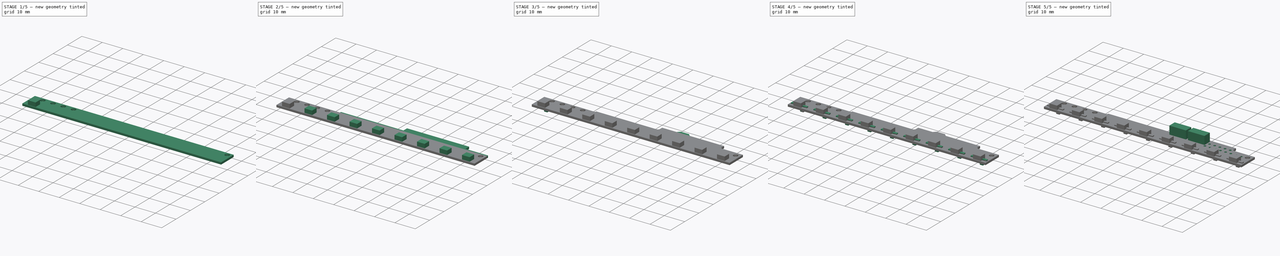
[diagram: build sequence overview — one tinted view per stage of 5, left to right]
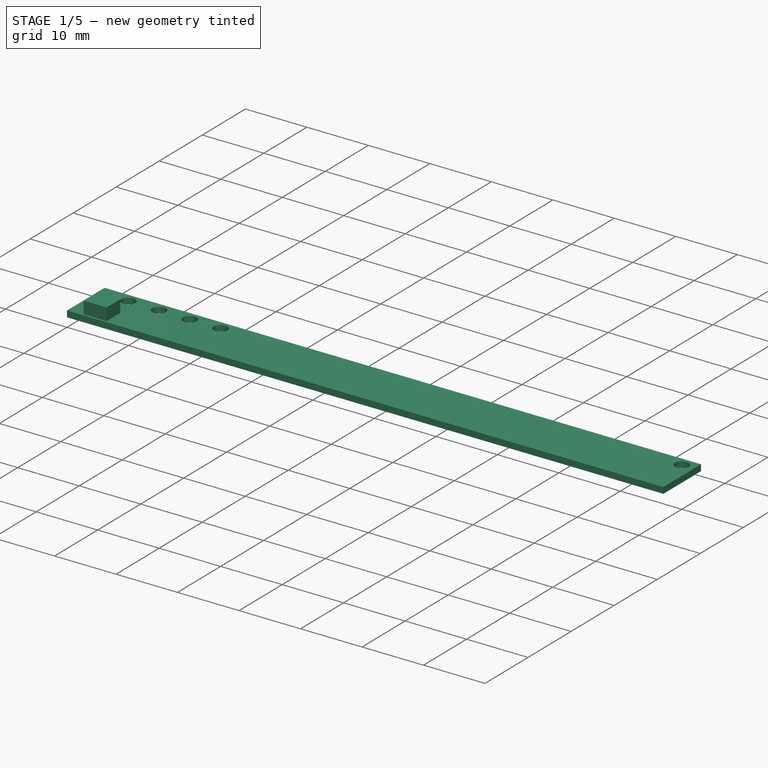
[diagram: stage 1 of 5 — iso view after this stage's code; geometry added in this stage tinted green]
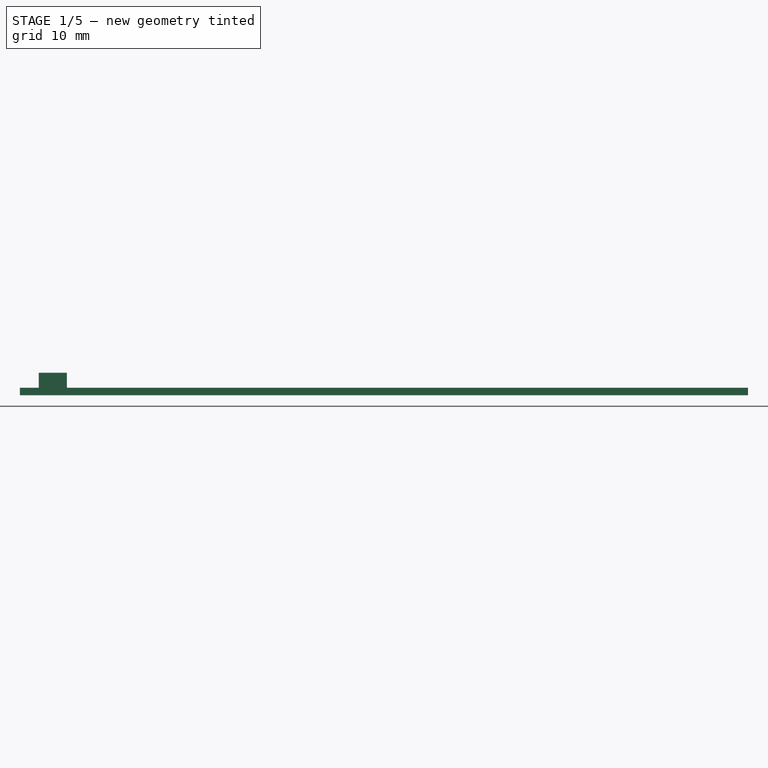
[diagram: stage 1 of 5 — front view after this stage's code; geometry added in this stage tinted green]
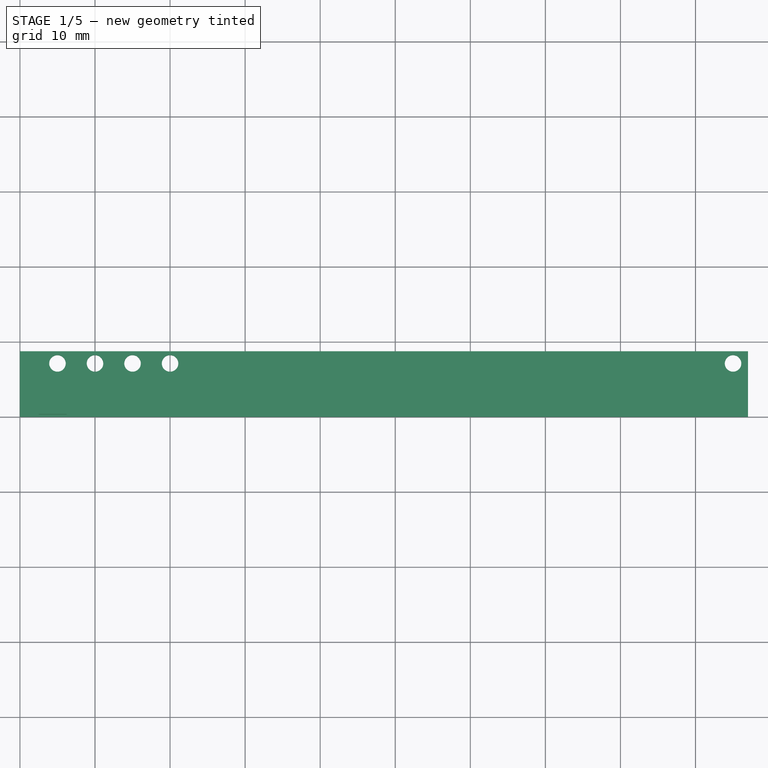
[diagram: stage 1 of 5 — top view after this stage's code; geometry added in this stage tinted green]
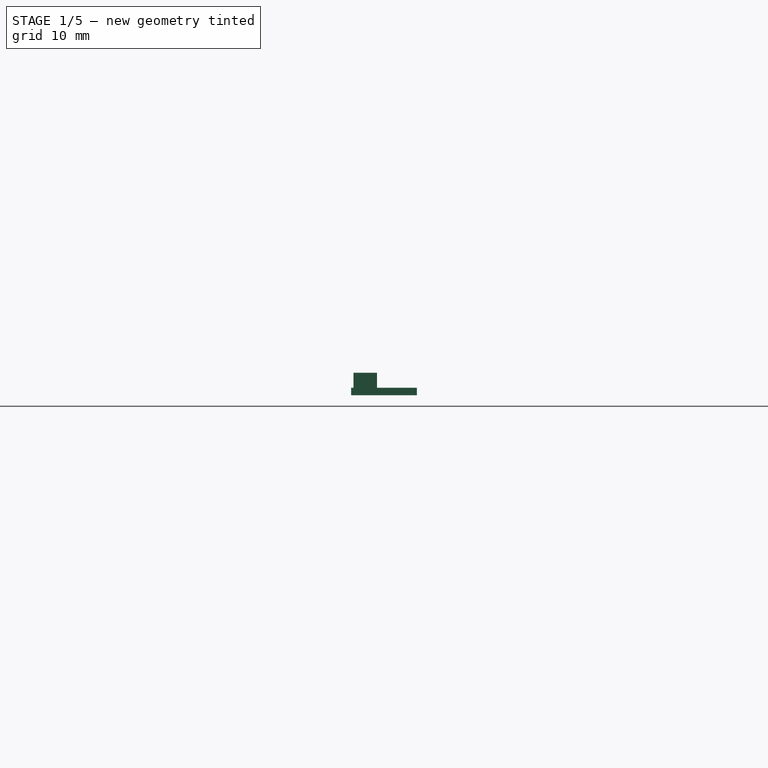
[diagram: stage 1 of 5 — right view after this stage's code; geometry added in this stage tinted green]
FCSTD DOCUMENT  (FreeCAD 0.18.4R)
Label: line_senzor_9
License: All rights reserved
LicenseURL: http://en.wikipedia.org/wiki/All_rights_reserved
objects: Sketcher::SketchObject×16, PartDesign::Pad×9, PartDesign::LinearPattern×8, PartDesign::Pocket×5, PartDesign::Fillet×2, PartDesign::Chamfer×1, PartDesign::Body×1
note: 56 computed .brp shape members not serialized (recipe doc carries the construction recipe); baked Part::Feature solids carry a one-line shape summary decoded from their .brp

FEATURE [Sketcher::SketchObject] Sketch
  MapMode = 5
  Support = -> [XY_Plane]
  sketch-geometry (4):
    g0: LineSegment StartX=0 StartY=8.75 StartZ=0 EndX=97 EndY=8.75 EndZ=0
    g1: LineSegment StartX=97 StartY=8.75 StartZ=0 EndX=97 EndY=0 EndZ=0
    g2: LineSegment StartX=97 StartY=0 StartZ=0 EndX=0 EndY=0 EndZ=0
    g3: LineSegment StartX=0 StartY=0 StartZ=0 EndX=0 EndY=8.75 EndZ=0
  constraints (11):
    c: Coincident(g0,g1)
    c: Coincident(g1,g2)
    c: Coincident(g2,g3)
    c: Coincident(g3,g0)
    c: Horizontal(g0)
    c: Horizontal(g2)
    c: Vertical(g1)
    c: Vertical(g3)
    c: Coincident(g2,g-1)
    c: Distance(g2) = 97
    c: Distance(g3) = 8.75
FEATURE [PartDesign::Pad] Pad
  Length = 1
  Length2 = 100
  Profile = -> Sketch
  Type = 0
FEATURE [Sketcher::SketchObject] Sketch001
  MapMode = 5
  Placement = pos=(0,0,1) rot=(0,0,1;0rad)
  Support = -> [Pad]
  expr: Constraints[1] = 9 - 1.875
  sketch-geometry (3):
    g0: Circle CenterX=5 CenterY=7.125 CenterZ=0 NormalX=0 NormalY=0 NormalZ=1 AngleXU=0 Radius=1.1
    g1: Circle [constr] CenterX=95 CenterY=7.125 CenterZ=0 NormalX=0 NormalY=0 NormalZ=1 AngleXU=0 Radius=1.1
    g2: LineSegment [constr] StartX=5 StartY=7.125 StartZ=0 EndX=95 EndY=7.125 EndZ=0
  constraints (8):
    c: DistanceX(g0) = 5
    c: DistanceY(g0) = 7.125
    c: Radius(g0) = 1.1
    c: Equal(g1,g0)
    c: Coincident(g2,g1)
    c: Horizontal(g2)
    c: Distance(g2) = 90
    c: Coincident(g0,g2)
FEATURE [PartDesign::Pocket] Pocket
  BaseFeature = -> Pad
  Length = 5
  Length2 = 100
  Profile = -> Sketch001
  Type = 0
FEATURE [Sketcher::SketchObject] Sketch002
  MapMode = 5
  Placement = pos=(0,0,1) rot=(0,0,1;0rad)
  Support = -> [Pad]
  expr: Constraints[1] = 9 - 1.875
  sketch-geometry (3):
    g0: Circle [constr] CenterX=5 CenterY=7.125 CenterZ=0 NormalX=0 NormalY=0 NormalZ=1 AngleXU=0 Radius=1.1
    g1: Circle CenterX=95 CenterY=7.125 CenterZ=0 NormalX=0 NormalY=0 NormalZ=1 AngleXU=0 Radius=1.1
    g2: LineSegment [constr] StartX=5 StartY=7.125 StartZ=0 EndX=95 EndY=7.125 EndZ=0
  constraints (8):
    c: DistanceX(g0) = 5
    c: DistanceY(g0) = 7.125
    c: Radius(g0) = 1.1
    c: Equal(g1,g0)
    c: Coincident(g2,g1)
    c: Horizontal(g2)
    c: Distance(g2) = 90
    c: Coincident(g0,g2)
FEATURE [Sketcher::SketchObject] CopySketch002
  Placement = pos=(0,0,1) rot=(0,0,1;0rad)
  expr: Constraints[1] = 9 - 1.875
  sketch-geometry (3):
    g0: Circle [constr] CenterX=5 CenterY=7.125 CenterZ=0 NormalX=0 NormalY=0 NormalZ=1 AngleXU=0 Radius=1.1
    g1: Circle CenterX=95 CenterY=7.125 CenterZ=0 NormalX=0 NormalY=0 NormalZ=1 AngleXU=0 Radius=1.1
    g2: LineSegment [constr] StartX=5 StartY=7.125 StartZ=0 EndX=95 EndY=7.125 EndZ=0
  constraints (8):
    c: DistanceX(g0) = 5
    c: DistanceY(g0) = 7.125
    c: Radius(g0) = 1.1
    c: Equal(g1,g0)
    c: Coincident(g2,g1)
    c: Horizontal(g2)
    c: Distance(g2) = 90
    c: Coincident(g0,g2)
FEATURE [PartDesign::Pocket] Pocket001
  BaseFeature = -> Pocket
  Length = 5
  Length2 = 100
  Profile = -> CopySketch002
  Type = 0
FEATURE [PartDesign::LinearPattern] LinearPattern
  BaseFeature = -> Pocket001
  Direction = -> Sketch001 [H_Axis]
  Length = 15
  Occurrences = 4
  Originals = -> [Pocket]
FEATURE [Sketcher::SketchObject] Sketch003
  MapMode = 5
  Placement = pos=(0,0,1) rot=(0,0,1;0rad)
  Support = -> [LinearPattern]
  sketch-geometry (6):
    g0: LineSegment StartX=2.5 StartY=0.3125 StartZ=0 EndX=6.25 EndY=0.3125 EndZ=0
    g1: LineSegment StartX=6.25 StartY=0.3125 StartZ=0 EndX=6.25 EndY=3.4375 EndZ=0
    g2: LineSegment StartX=6.25 StartY=3.4375 StartZ=0 EndX=2.5 EndY=3.4375 EndZ=0
    g3: LineSegment StartX=2.5 StartY=3.4375 StartZ=0 EndX=2.5 EndY=0.3125 EndZ=0
    g4: LineSegment [constr] StartX=2.5 StartY=0.3125 StartZ=0 EndX=4.375 EndY=1.875 EndZ=0
    g5: LineSegment [constr] StartX=4.375 StartY=1.875 StartZ=0 EndX=6.25 EndY=3.4375 EndZ=0
  constraints (17):
    c: Coincident(g0,g1)
    c: Coincident(g1,g2)
    c: Coincident(g2,g3)
    c: Coincident(g3,g0)
    c: Horizontal(g0)
    c: Horizontal(g2)
    c: Vertical(g1)
    c: Vertical(g3)
    c: Coincident(g4,g5)
    c: Coincident(g5,g1)
    c: Parallel(g5,g4)
    c: Coincident(g4,g0)
    c: Equal(g4,g5)
    c: DistanceX(g4) = 4.375
    c: DistanceY(g4) = 1.875
    c: Distance(g1) = 3.125
    c: Distance(g0) = 3.75
FEATURE [PartDesign::Pad] Pad001
  BaseFeature = -> LinearPattern
  Length = 2
  Length2 = 100
  Profile = -> Sketch003
  Type = 0
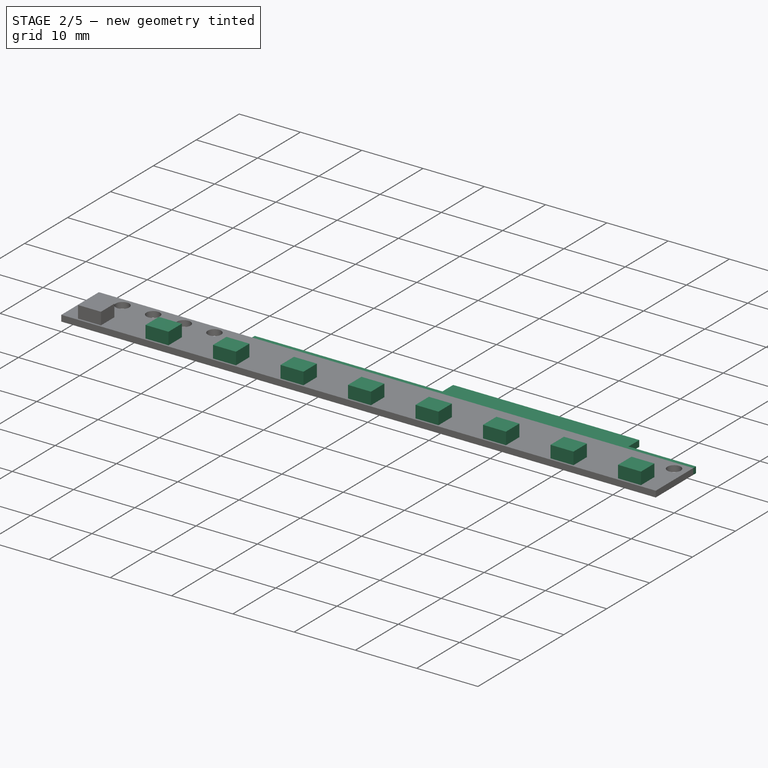
[diagram: stage 2 of 5 — iso view after this stage's code; geometry added in this stage tinted green]
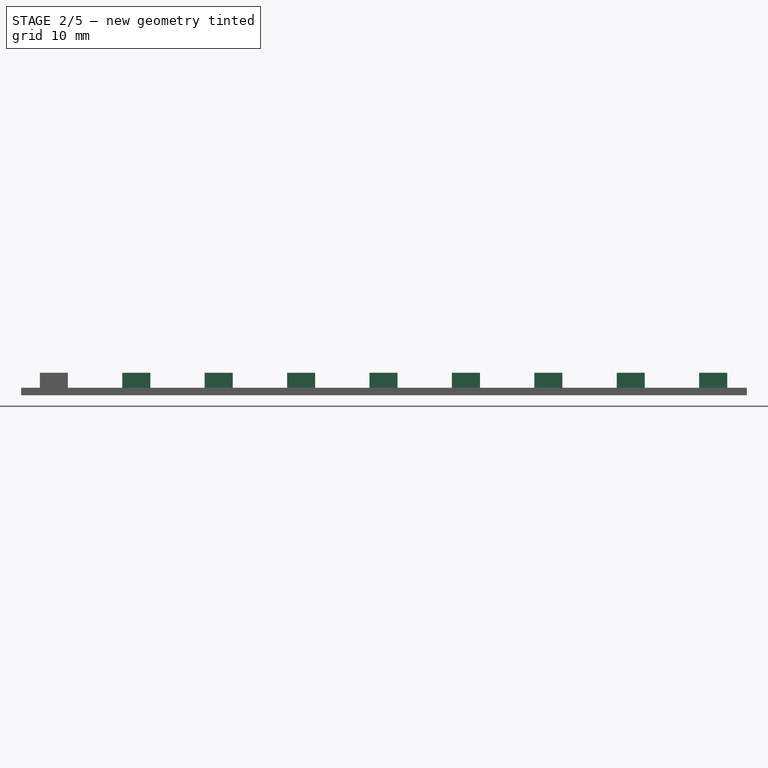
[diagram: stage 2 of 5 — front view after this stage's code; geometry added in this stage tinted green]
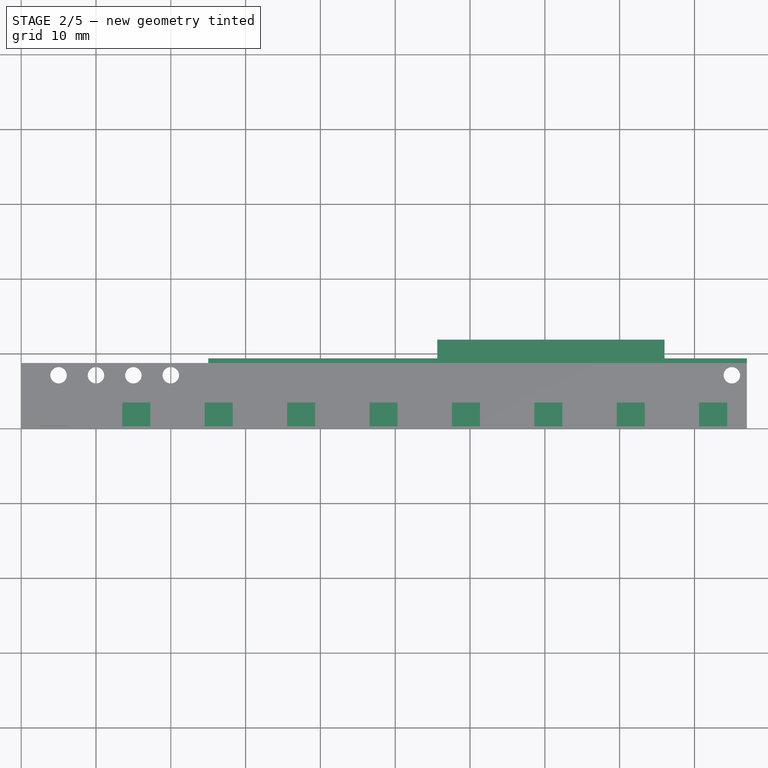
[diagram: stage 2 of 5 — top view after this stage's code; geometry added in this stage tinted green]
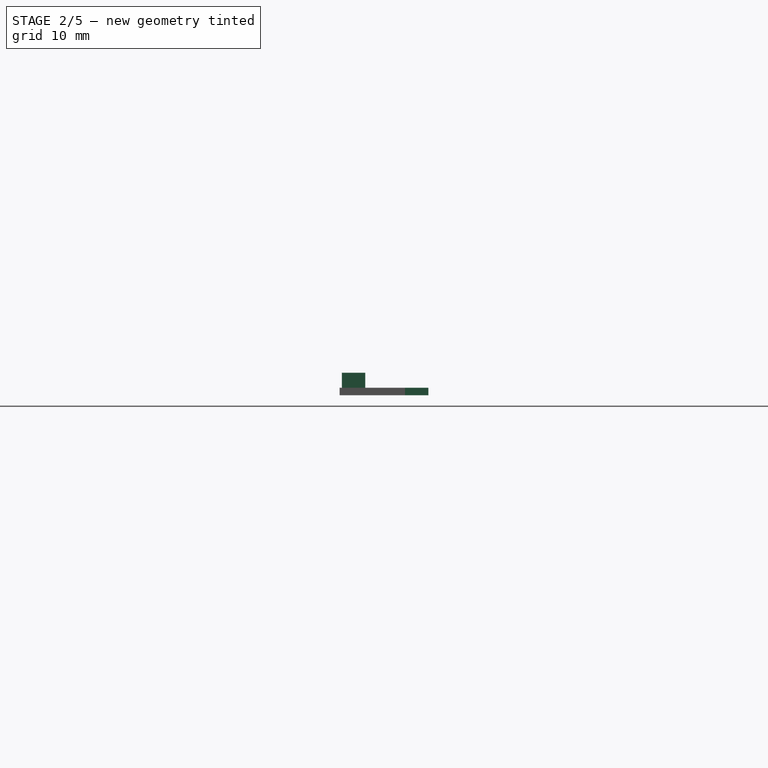
[diagram: stage 2 of 5 — right view after this stage's code; geometry added in this stage tinted green]
FEATURE [PartDesign::LinearPattern] LinearPattern001
  BaseFeature = -> Pad001
  Direction = -> Sketch003 [H_Axis]
  Length = 88.125
  Occurrences = 9
  Originals = -> [Pad001]
FEATURE [Sketcher::SketchObject] Sketch004
  MapMode = 5
  Placement = pos=(0,0,1) rot=(0,0,1;0rad)
  Support = -> [LinearPattern]
  sketch-geometry (1):
    g0: Circle CenterX=4.375 CenterY=1.875 CenterZ=0 NormalX=0 NormalY=0 NormalZ=1 AngleXU=0 Radius=0.75
  constraints (3):
    c: DistanceX(g0) = 4.375
    c: DistanceY(g0) = 1.875
    c: Radius(g0) = 0.75
FEATURE [Sketcher::SketchObject] CopySketch004
  Placement = pos=(0,0,1) rot=(0,0,1;0rad)
  sketch-geometry (1):
    g0: Circle CenterX=4.375 CenterY=1.875 CenterZ=0 NormalX=0 NormalY=0 NormalZ=1 AngleXU=0 Radius=0.75
  constraints (3):
    c: DistanceX(g0) = 4.375
    c: DistanceY(g0) = 1.875
    c: Radius(g0) = 0.75
FEATURE [PartDesign::Pocket] Pocket002
  BaseFeature = -> LinearPattern001
  Length = 5
  Length2 = 100
  Profile = -> CopySketch004
  Type = 0
FEATURE [PartDesign::LinearPattern] LinearPattern002
  BaseFeature = -> Pocket002
  Direction = -> CopySketch004 [H_Axis]
  Length = 88.125
  Occurrences = 9
  Originals = -> [Pocket002]
FEATURE [Sketcher::SketchObject] Sketch005
  MapMode = 5
  Placement = pos=(0,8.75,0) rot=(0,0.707107,0.707107;3.14159rad)
  Support = -> [LinearPattern002]
  sketch-geometry (4):
    g0: LineSegment StartX=-97 StartY=0 StartZ=0 EndX=-25 EndY=0 EndZ=0
    g1: LineSegment StartX=-25 StartY=0 StartZ=0 EndX=-25 EndY=1 EndZ=0
    g2: LineSegment StartX=-25 StartY=1 StartZ=0 EndX=-97 EndY=1 EndZ=0
    g3: LineSegment StartX=-97 StartY=1 StartZ=0 EndX=-97 EndY=0 EndZ=0
  constraints (12):
    c: Coincident(g0,g1)
    c: Coincident(g1,g2)
    c: Coincident(g2,g3)
    c: Coincident(g3,g0)
    c: Horizontal(g0)
    c: Horizontal(g2)
    c: Vertical(g1)
    c: Vertical(g3)
    c: Distance(g1) = 1
    c: PointOnObject(g0,g-1)
    c: DistanceX(g0) = -97
    c: Distance(g-1,g0) = 25
FEATURE [PartDesign::Pad] Pad002
  BaseFeature = -> LinearPattern002
  Length = 0.625
  Length2 = 100
  Profile = -> Sketch005
  Type = 0
FEATURE [Sketcher::SketchObject] Sketch006
  MapMode = 5
  Placement = pos=(0,9.375,0) rot=(0,0.707107,0.707107;3.14159rad)
  Support = -> [Pad002]
  expr: Constraints[10] = -97 + 11
  sketch-geometry (4):
    g0: LineSegment StartX=-86 StartY=1 StartZ=0 EndX=-55.625 EndY=1 EndZ=0
    g1: LineSegment StartX=-55.625 StartY=1 StartZ=0 EndX=-55.625 EndY=0 EndZ=0
    g2: LineSegment StartX=-55.625 StartY=0 StartZ=0 EndX=-86 EndY=0 EndZ=0
    g3: LineSegment StartX=-86 StartY=0 StartZ=0 EndX=-86 EndY=1 EndZ=0
  constraints (12):
    c: Coincident(g0,g1)
    c: Coincident(g1,g2)
    c: Coincident(g2,g3)
    c: Coincident(g3,g0)
    c: Horizontal(g0)
    c: Horizontal(g2)
    c: Vertical(g1)
    c: Vertical(g3)
    c: Distance(g3) = 1
    c: PointOnObject(g2,g-1)
    c: DistanceX(g2) = -86
    c: Distance(g0) = 30.375
FEATURE [PartDesign::Pad] Pad003
  BaseFeature = -> Pad002
  Length = 2.5
  Length2 = 100
  Profile = -> Sketch006
  Type = 0
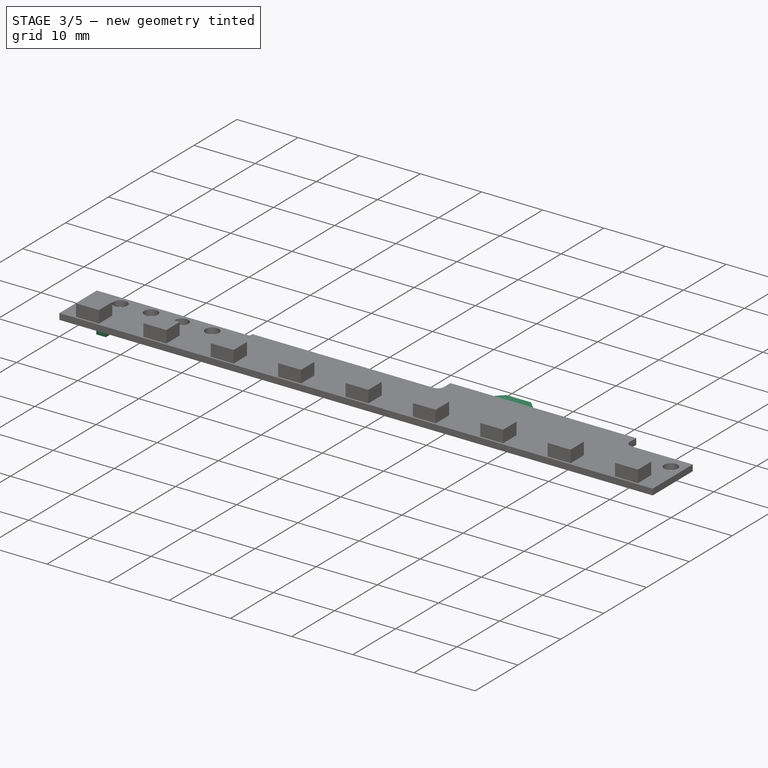
[diagram: stage 3 of 5 — iso view after this stage's code; geometry added in this stage tinted green]
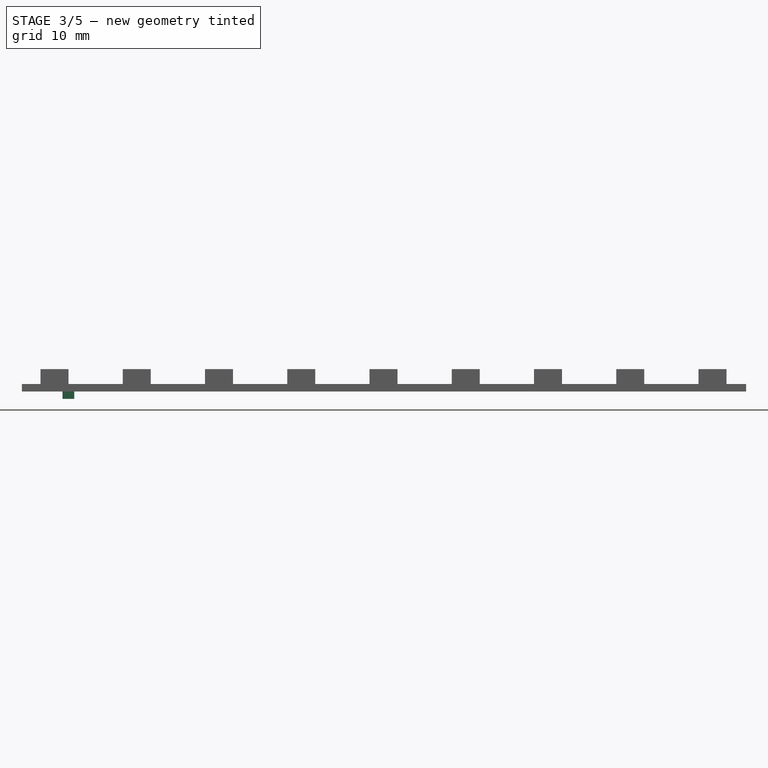
[diagram: stage 3 of 5 — front view after this stage's code; geometry added in this stage tinted green]
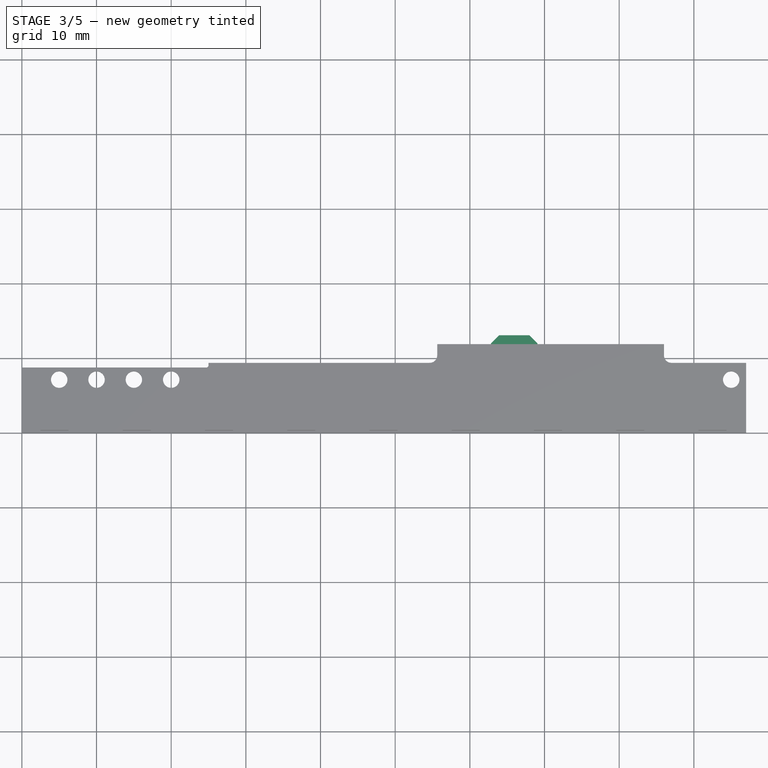
[diagram: stage 3 of 5 — top view after this stage's code; geometry added in this stage tinted green]
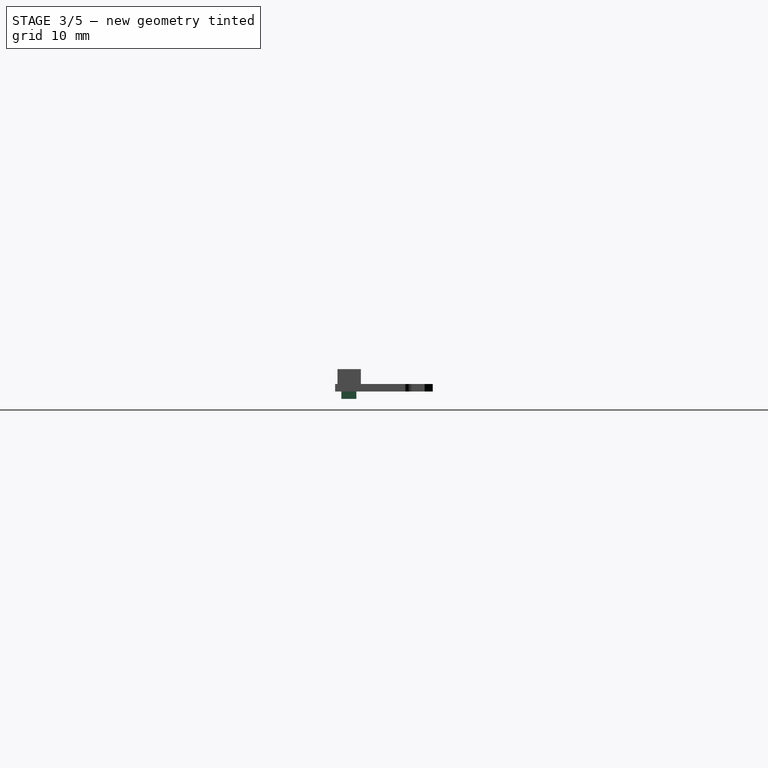
[diagram: stage 3 of 5 — right view after this stage's code; geometry added in this stage tinted green]
FEATURE [PartDesign::Fillet] Fillet
  Base = -> Pad003 [Edge105,Edge179]
  BaseFeature = -> Pad003
  Radius = 1
FEATURE [PartDesign::Fillet] Fillet001
  Base = -> Fillet [Edge38]
  BaseFeature = -> Fillet
  Radius = 0.3
FEATURE [Sketcher::SketchObject] Sketch007
  MapMode = 5
  Placement = pos=(0,11.875,0) rot=(0,0.707107,0.707107;3.14159rad)
  Support = -> [Fillet001]
  sketch-geometry (4):
    g0: LineSegment StartX=-69.0625 StartY=1 StartZ=0 EndX=-62.8125 EndY=1 EndZ=0
    g1: LineSegment StartX=-62.8125 StartY=1 StartZ=0 EndX=-62.8125 EndY=0 EndZ=0
    g2: LineSegment StartX=-62.8125 StartY=0 StartZ=0 EndX=-69.0625 EndY=0 EndZ=0
    g3: LineSegment StartX=-69.0625 StartY=0 StartZ=0 EndX=-69.0625 EndY=1 EndZ=0
  constraints (12):
    c: Coincident(g0,g1)
    c: Coincident(g1,g2)
    c: Coincident(g2,g3)
    c: Coincident(g3,g0)
    c: Horizontal(g0)
    c: Horizontal(g2)
    c: Vertical(g1)
    c: Vertical(g3)
    c: DistanceX(g0) = -62.8125
    c: Distance(g3) = 1
    c: PointOnObject(g1,g-1)
    c: Distance(g0) = 6.25
FEATURE [PartDesign::Pad] Pad004
  BaseFeature = -> Fillet001
  Length = 1.2
  Length2 = 100
  Profile = -> Sketch007
  Type = 0
FEATURE [PartDesign::Chamfer] Chamfer
  Base = -> Pad004 [Edge143,Edge141]
  BaseFeature = -> Pad004
  Size = 1.1
FEATURE [Sketcher::SketchObject] Sketch008
  MapMode = 5
  Placement = pos=(0,0,0) rot=(1,0,0;3.14159rad)
  Support = -> [Chamfer]
  sketch-geometry (4):
    g0: LineSegment StartX=5.44136 StartY=-0.831351 StartZ=0 EndX=7.02136 EndY=-0.831351 EndZ=0
    g1: LineSegment StartX=7.02136 StartY=-0.831351 StartZ=0 EndX=7.02136 EndY=-2.84135 EndZ=0
    g2: LineSegment StartX=7.02136 StartY=-2.84135 StartZ=0 EndX=5.44136 EndY=-2.84135 EndZ=0
    g3: LineSegment StartX=5.44136 StartY=-2.84135 StartZ=0 EndX=5.44136 EndY=-0.831351 EndZ=0
  constraints (12):
    c: Coincident(g0,g1)
    c: Coincident(g1,g2)
    c: Coincident(g2,g3)
    c: Coincident(g3,g0)
    c: Horizontal(g0)
    c: Horizontal(g2)
    c: Vertical(g1)
    c: Vertical(g3)
    c: DistanceX(g0) = 5.44136
    c: DistanceY(g0) = -0.831351
    c: Distance(g2) = 1.58
    c: Distance(g1) = 2.01
FEATURE [PartDesign::Pad] Pad005
  BaseFeature = -> Chamfer
  Length = 1
  Length2 = 100
  Profile = -> Sketch008
  Type = 0
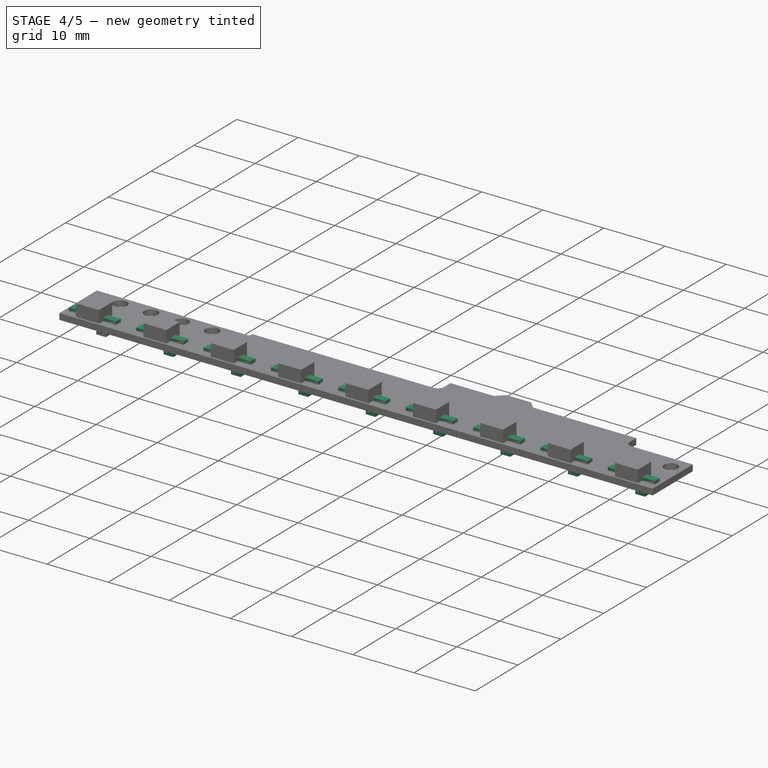
[diagram: stage 4 of 5 — iso view after this stage's code; geometry added in this stage tinted green]
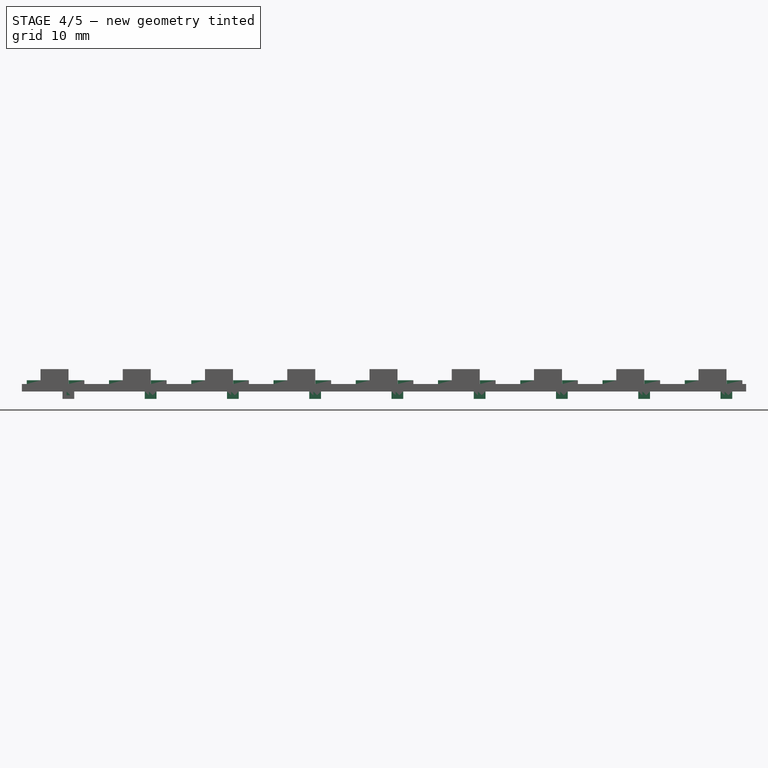
[diagram: stage 4 of 5 — front view after this stage's code; geometry added in this stage tinted green]
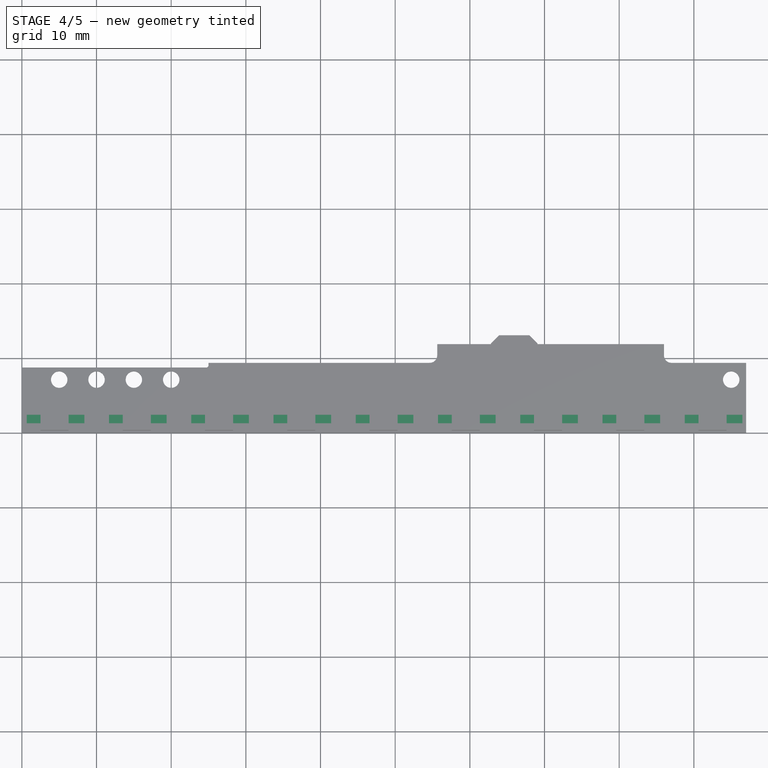
[diagram: stage 4 of 5 — top view after this stage's code; geometry added in this stage tinted green]
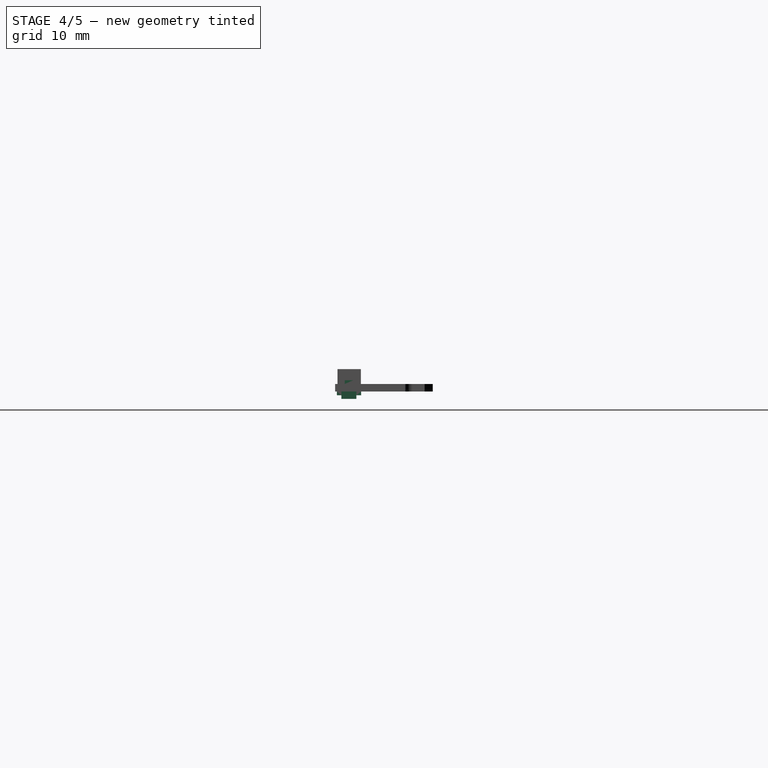
[diagram: stage 4 of 5 — right view after this stage's code; geometry added in this stage tinted green]
FEATURE [PartDesign::LinearPattern] LinearPattern003
  BaseFeature = -> Pad005
  Direction = -> Sketch008 [H_Axis]
  Length = 88.125
  Occurrences = 9
  Originals = -> [Pad005]
FEATURE [Sketcher::SketchObject] Sketch009
  MapMode = 5
  Placement = pos=(0,0,1) rot=(0,0,1;0rad)
  Support = -> [LinearPattern003]
  sketch-geometry (8):
    g0: LineSegment StartX=0.647237 StartY=2.40456 StartZ=0 EndX=2.52455 EndY=2.40456 EndZ=0
    g1: LineSegment StartX=2.52455 StartY=2.40456 StartZ=0 EndX=2.52455 EndY=1.27696 EndZ=0
    g2: LineSegment StartX=2.52455 StartY=1.27696 StartZ=0 EndX=0.647237 EndY=1.27696 EndZ=0
    g3: LineSegment StartX=0.647237 StartY=1.27696 StartZ=0 EndX=0.647237 EndY=2.40456 EndZ=0
    g4: LineSegment StartX=6.26094 StartY=2.40456 StartZ=0 EndX=8.3752 EndY=2.40456 EndZ=0
    g5: LineSegment StartX=8.3752 StartY=2.40456 StartZ=0 EndX=8.3752 EndY=1.27696 EndZ=0
    g6: LineSegment StartX=8.3752 StartY=1.27696 StartZ=0 EndX=6.26094 EndY=1.27696 EndZ=0
    g7: LineSegment StartX=6.26094 StartY=1.27696 StartZ=0 EndX=6.26094 EndY=2.40456 EndZ=0
  constraints (18):
    c: Coincident(g0,g1)
    c: Coincident(g1,g2)
    c: Coincident(g2,g3)
    c: Coincident(g3,g0)
    c: Horizontal(g0)
    c: Horizontal(g2)
    c: Vertical(g1)
    c: Vertical(g3)
    c: Coincident(g4,g5)
    c: Coincident(g5,g6)
    c: Coincident(g6,g7)
    c: Coincident(g7,g4)
    c: Horizontal(g4)
    c: Horizontal(g6)
    c: Vertical(g5)
    c: Vertical(g7)
    c: Equal(g3,g5)
    c: PointOnObject(g5,g2)
FEATURE [PartDesign::Pad] Pad006
  BaseFeature = -> LinearPattern003
  Length = 0.5
  Length2 = 100
  Profile = -> Sketch009
  Type = 0
FEATURE [PartDesign::LinearPattern] LinearPattern004
  BaseFeature = -> Pad006
  Direction = -> Sketch009 [H_Axis]
  Length = 88.125
  Occurrences = 9
  Originals = -> [Pad006]
FEATURE [Sketcher::SketchObject] Sketch010
  MapMode = 5
  Placement = pos=(0,0,0) rot=(1,0,0;3.14159rad)
  Support = -> [LinearPattern004]
  sketch-geometry (8):
    g0: LineSegment StartX=5.98836 StartY=-0.852713 StartZ=0 EndX=6.49475 EndY=-0.852713 EndZ=0
    g1: LineSegment StartX=6.49475 StartY=-0.852713 StartZ=0 EndX=6.49475 EndY=-0.220474 EndZ=0
    g2: LineSegment StartX=6.49475 StartY=-0.220474 StartZ=0 EndX=5.98836 EndY=-0.220474 EndZ=0
    g3: LineSegment StartX=5.98836 StartY=-0.220474 StartZ=0 EndX=5.98836 EndY=-0.852713 EndZ=0
    g4: LineSegment StartX=5.98836 StartY=-2.83788 StartZ=0 EndX=6.49475 EndY=-2.83788 EndZ=0
    g5: LineSegment StartX=6.49475 StartY=-2.83788 StartZ=0 EndX=6.49475 EndY=-3.47011 EndZ=0
    g6: LineSegment StartX=6.49475 StartY=-3.47011 StartZ=0 EndX=5.98836 EndY=-3.47011 EndZ=0
    g7: LineSegment StartX=5.98836 StartY=-3.47011 StartZ=0 EndX=5.98836 EndY=-2.83788 EndZ=0
  constraints (19):
    c: Coincident(g0,g1)
    c: Coincident(g1,g2)
    c: Coincident(g2,g3)
    c: Coincident(g3,g0)
    c: Horizontal(g0)
    c: Horizontal(g2)
    c: Vertical(g1)
    c: Vertical(g3)
    c: Coincident(g4,g5)
    c: Coincident(g5,g6)
    c: Coincident(g6,g7)
    c: Coincident(g7,g4)
    c: Horizontal(g4)
    c: Horizontal(g6)
    c: Vertical(g5)
    c: Vertical(g7)
    c: PointOnObject(g0,g5)
    c: Equal(g2,g4)
    c: Equal(g5,g1)
FEATURE [PartDesign::Pad] Pad007
  BaseFeature = -> LinearPattern004
  Length = 0.5
  Length2 = 100
  Profile = -> Sketch010
  Type = 0
FEATURE [PartDesign::LinearPattern] LinearPattern005
  BaseFeature = -> Pad007
  Direction = -> Sketch010 [H_Axis]
  Length = 88.125
  Occurrences = 9
  Originals = -> [Pad007]
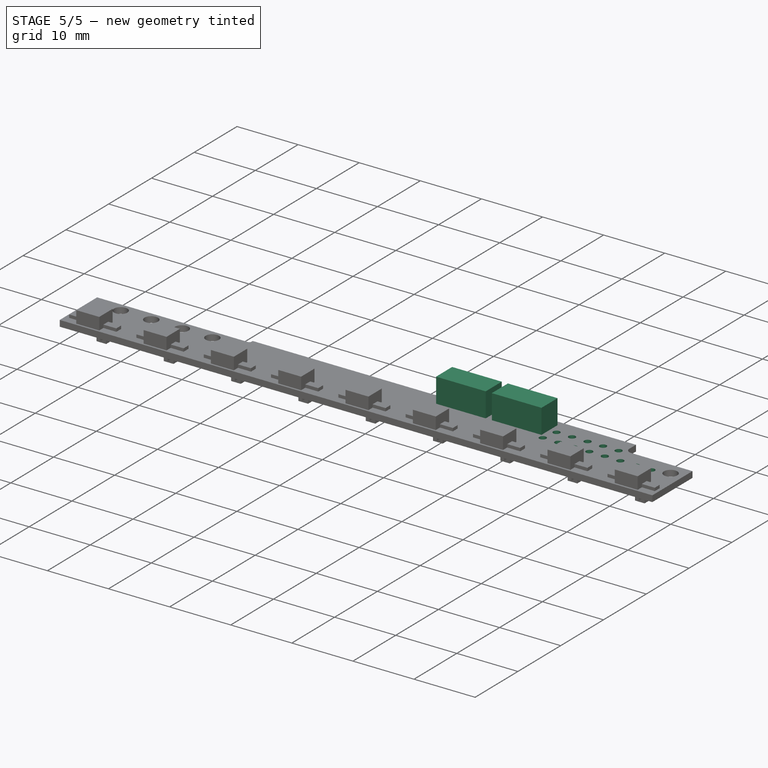
[diagram: stage 5 of 5 — iso view after this stage's code; geometry added in this stage tinted green]
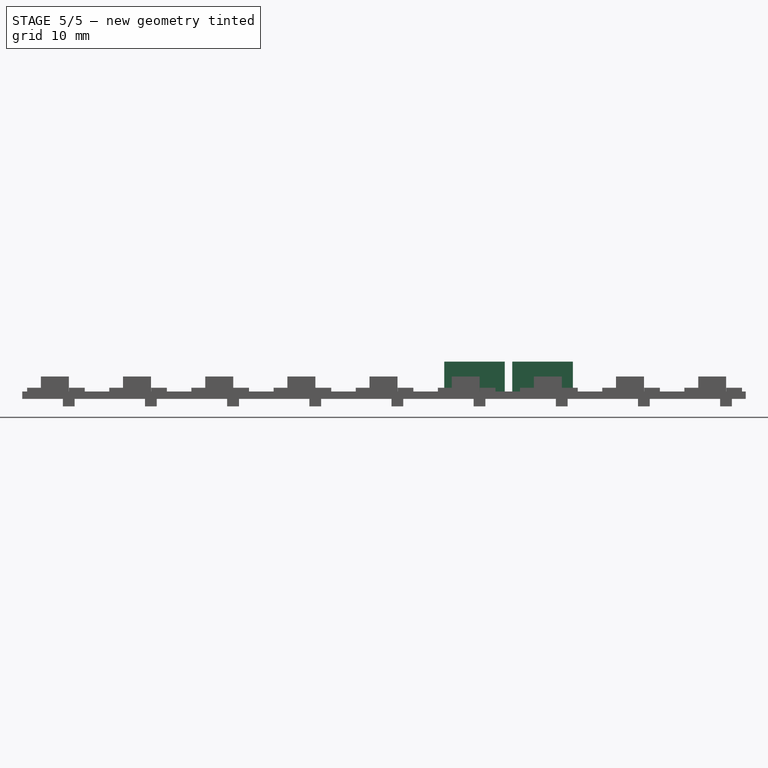
[diagram: stage 5 of 5 — front view after this stage's code; geometry added in this stage tinted green]
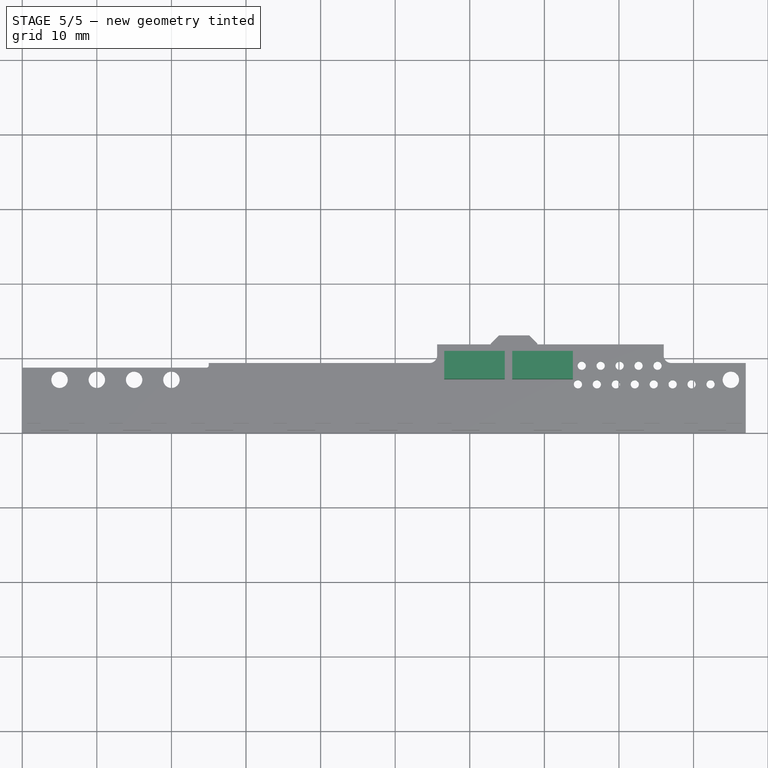
[diagram: stage 5 of 5 — top view after this stage's code; geometry added in this stage tinted green]
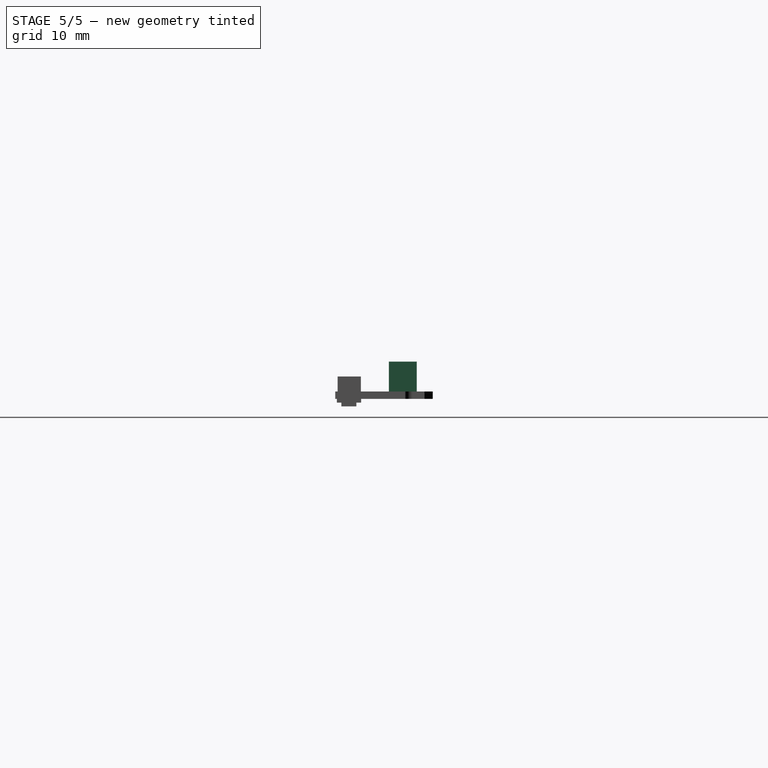
[diagram: stage 5 of 5 — right view after this stage's code; geometry added in this stage tinted green]
FEATURE [Sketcher::SketchObject] Sketch011
  MapMode = 5
  Placement = pos=(0,0,1) rot=(0,0,1;0rad)
  Support = -> [LinearPattern005]
  sketch-geometry (8):
    g0: LineSegment StartX=56.5706 StartY=10.9331 StartZ=0 EndX=64.6956 EndY=10.9331 EndZ=0
    g1: LineSegment StartX=64.6956 StartY=10.9331 StartZ=0 EndX=64.6956 EndY=7.18314 EndZ=0
    g2: LineSegment StartX=64.6956 StartY=7.18314 StartZ=0 EndX=56.5706 EndY=7.18314 EndZ=0
    g3: LineSegment StartX=56.5706 StartY=7.18314 StartZ=0 EndX=56.5706 EndY=10.9331 EndZ=0
    g4: LineSegment StartX=65.6956 StartY=10.9331 StartZ=0 EndX=73.8206 EndY=10.9331 EndZ=0
    g5: LineSegment StartX=73.8206 StartY=10.9331 StartZ=0 EndX=73.8206 EndY=7.18314 EndZ=0
    g6: LineSegment StartX=73.8206 StartY=7.18314 StartZ=0 EndX=65.6956 EndY=7.18314 EndZ=0
    g7: LineSegment StartX=65.6956 StartY=7.18314 StartZ=0 EndX=65.6956 EndY=10.9331 EndZ=0
  constraints (22):
    c: Coincident(g0,g1)
    c: Coincident(g1,g2)
    c: Coincident(g2,g3)
    c: Coincident(g3,g0)
    c: Horizontal(g0)
    c: Horizontal(g2)
    c: Vertical(g1)
    c: Vertical(g3)
    c: Coincident(g4,g5)
    c: Coincident(g5,g6)
    c: Coincident(g6,g7)
    c: Coincident(g7,g4)
    c: Horizontal(g4)
    c: Horizontal(g6)
    c: Vertical(g5)
    c: Vertical(g7)
    c: Equal(g6,g2)
    c: Equal(g1,g7)
    c: PointOnObject(g4,g0)
    c: Distance(g3) = 3.75
    c: Distance(g2) = 8.125
    c: Distance(g4,g1) = 1
FEATURE [PartDesign::Pad] Pad008
  BaseFeature = -> LinearPattern005
  Length = 4
  Length2 = 100
  Profile = -> Sketch011
  Type = 0
FEATURE [Sketcher::SketchObject] Sketch012
  MapMode = 5
  Placement = pos=(0,2e-16,1) rot=(0,0,1;0rad)
  Support = -> [Pad008]
  sketch-geometry (1):
    g0: Circle CenterX=75.0104 CenterY=9.00635 CenterZ=0 NormalX=0 NormalY=0 NormalZ=1 AngleXU=0 Radius=0.55
  constraints (1):
    c: Radius(g0) = 0.55
FEATURE [PartDesign::Pocket] Pocket003
  BaseFeature = -> Pad008
  Length = 5
  Length2 = 100
  Profile = -> Sketch012
  Type = 0
FEATURE [PartDesign::LinearPattern] LinearPattern006
  BaseFeature = -> Pocket003
  Direction = -> Sketch012 [H_Axis]
  Length = 10.16
  Occurrences = 5
  Originals = -> [Pocket003]
  expr: Length = 2.54 * 4
FEATURE [Sketcher::SketchObject] Sketch013
  MapMode = 5
  Placement = pos=(0,0,1) rot=(0,0,1;0rad)
  Support = -> [LinearPattern006]
  sketch-geometry (1):
    g0: Circle CenterX=74.5 CenterY=6.51532 CenterZ=0 NormalX=0 NormalY=0 NormalZ=1 AngleXU=0 Radius=0.55
  constraints (3):
    c: Radius(g0) = 0.55
    c: DistanceX(g0) = 74.5
    c: DistanceY(g0) = 6.51532
FEATURE [PartDesign::Pocket] Pocket004
  BaseFeature = -> LinearPattern006
  Length = 5
  Length2 = 100
  Profile = -> Sketch013
  Type = 0
FEATURE [PartDesign::LinearPattern] LinearPattern007
  BaseFeature = -> Pocket004
  Direction = -> Sketch013 [H_Axis]
  Length = 17.78
  Occurrences = 8
  Originals = -> [Pocket004]
  expr: Length = 2.54 * 7
FEATURE [PartDesign::Body] Body
  Group = -> [Sketch,Pad,Sketch001,Pocket,Pocket001,LinearPattern,Sketch003,Pad001,LinearPattern001,Pocket002,LinearPattern002,Sketch005,Pad002,Sketch006,Pad003,Fillet,Fillet001,Sketch007,Pad004,Chamfer,Sketch008,Pad005,LinearPattern003,Sketch009,Pad006,LinearPattern004,Sketch010,Pad007,LinearPattern005,Sketch011,Pad008,Sketch012,Pocket003,LinearPattern006,Sketch013,Pocket004,LinearPattern007]
  Origin = -> Origin
  Tip = -> LinearPattern007
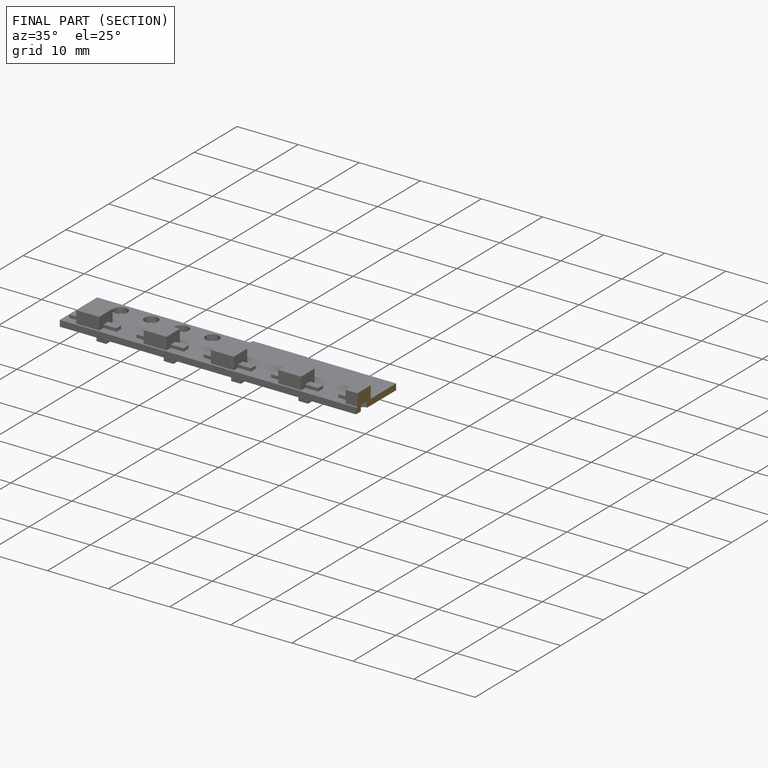
[diagram: finished part — half-section view (interior)]
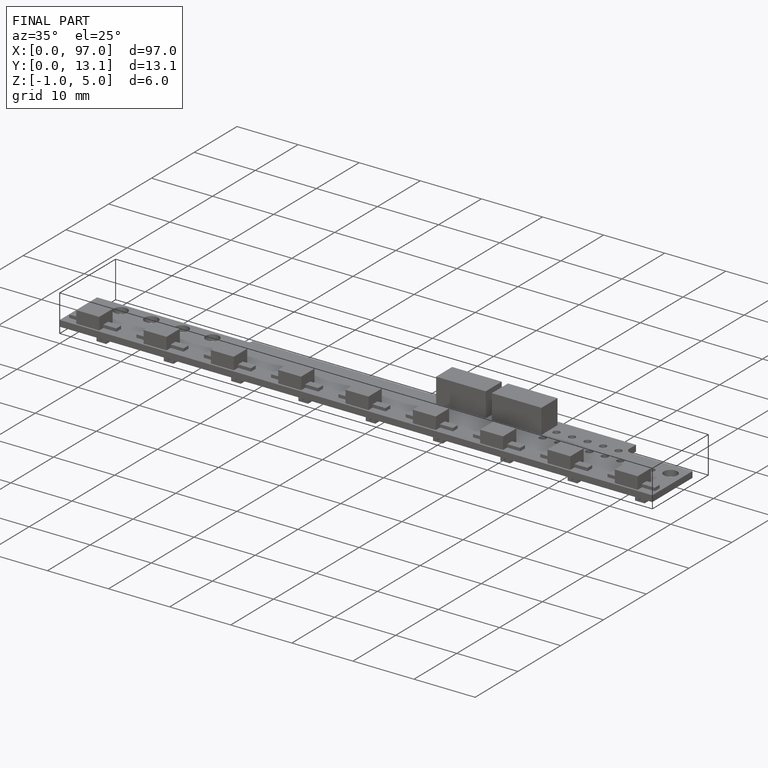
[diagram: finished part — iso view with bounding-box wireframe]
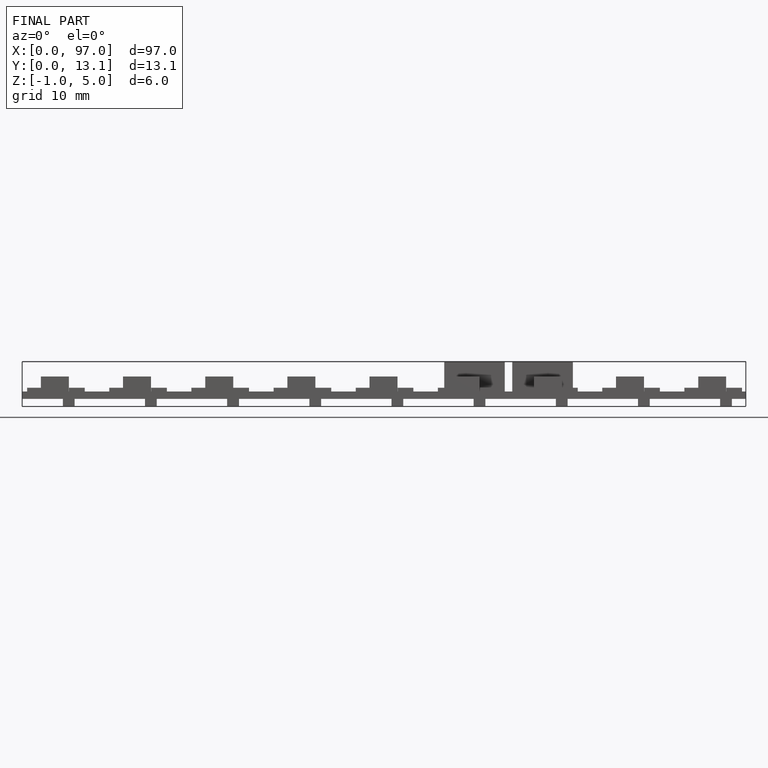
[diagram: finished part — front view with bounding-box wireframe]
